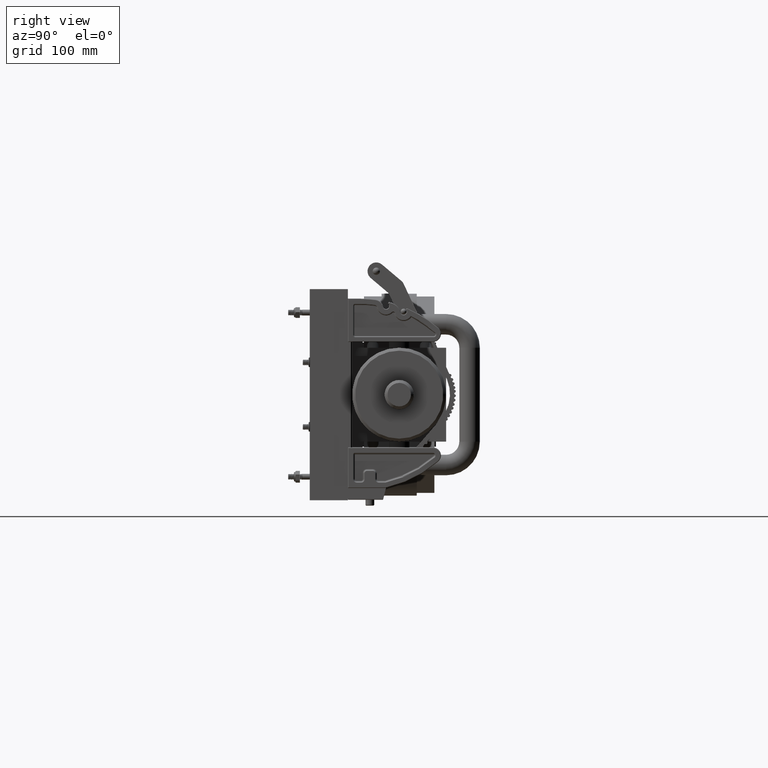
[diagram: clean part render]
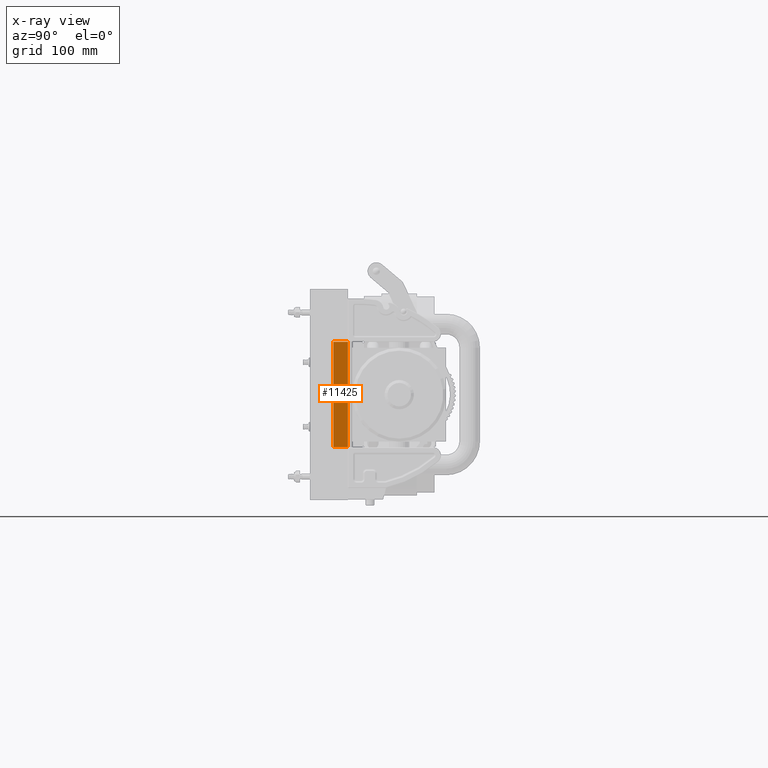
[diagram: x-ray — body ghosted, one internal face saturated and labeled with its STEP entity id]
A machine part, right view, then the same camera in x-ray: the body is ghosted and one INTERNAL B-rep face — a face not visible from any outside direction — is saturated and labeled: STEP entity #11425.
In plain terms, the highlighted planar face has unit normal (0.9344, -0.3561, 0).
Its self-contained STEP definition (entity closure, byte-faithful):
#473 = DIRECTION ( 'NONE',  ( -0.3561197693169032000, -0.9344403190689469800, 0.0000000000000000000 ) ) ;
#1326 = CARTESIAN_POINT ( 'NONE',  ( 4.370956789862821100E-015, -0.1880000000000016700, -2.250000000000000000 ) ) ;
#1435 = VERTEX_POINT ( 'NONE', #25701 ) ;
#2144 = CARTESIAN_POINT ( 'NONE',  ( 4.370956789862821100E-015, -0.1880000000000016700, 2.250000000000000000 ) ) ;
#6084 = DIRECTION ( 'NONE',  ( -0.0000000000000000000, -0.0000000000000000000, -1.000000000000000000 ) ) ;
#6741 = FACE_OUTER_BOUND ( 'NONE', #26015, .T. ) ;
#7552 = LINE ( 'NONE', #32899, #49577 ) ;
#9203 = AXIS2_PLACEMENT_3D ( 'NONE', #33451, #17239, #45725 ) ;
#11425 = ADVANCED_FACE ( 'NONE', ( #6741 ), #41637, .T. ) ;
#13823 = ORIENTED_EDGE ( 'NONE', *, *, #41980, .F. ) ;
#15770 = LINE ( 'NONE', #2144, #36180 ) ;
#15836 = DIRECTION ( 'NONE',  ( -0.3561197693169032000, -0.9344403190689469800, 0.0000000000000000000 ) ) ;
#17239 = DIRECTION ( 'NONE',  ( 0.9344403190689470900, -0.3561197693169032600, 0.0000000000000000000 ) ) ;
#18164 = LINE ( 'NONE', #52329, #37312 ) ;
#18370 = VECTOR ( 'NONE', #19831, 39.37007874015748100 ) ;
#19831 = DIRECTION ( 'NONE',  ( -0.0000000000000000000, -0.0000000000000000000, -1.000000000000000000 ) ) ;
#20422 = VERTEX_POINT ( 'NONE', #44954 ) ;
#22319 = EDGE_CURVE ( 'NONE', #20422, #37840, #18164, .T. ) ;
#23020 = VERTEX_POINT ( 'NONE', #1326 ) ;
#25701 = CARTESIAN_POINT ( 'NONE',  ( -0.2380000000000001300, -0.8125000000000000000, -2.250000000000000000 ) ) ;
#26015 = EDGE_LOOP ( 'NONE', ( #33588, #13823, #32418, #47170 ) ) ;
#27034 = EDGE_CURVE ( 'NONE', #37840, #1435, #29258, .T. ) ;
#27648 = CARTESIAN_POINT ( 'NONE',  ( -0.2380000000000001300, -0.8125000000000000000, 2.250000000000000000 ) ) ;
#29258 = LINE ( 'NONE', #31976, #18370 ) ;
#31976 = CARTESIAN_POINT ( 'NONE',  ( -0.2380000000000001300, -0.8125000000000000000, 2.250000000000000000 ) ) ;
#32418 = ORIENTED_EDGE ( 'NONE', *, *, #22319, .T. ) ;
#32899 = CARTESIAN_POINT ( 'NONE',  ( -0.2380000000000001300, -0.8125000000000000000, -2.250000000000000000 ) ) ;
#33451 = CARTESIAN_POINT ( 'NONE',  ( -0.2380000000000001300, -0.8125000000000000000, 2.250000000000000000 ) ) ;
#33588 = ORIENTED_EDGE ( 'NONE', *, *, #41315, .F. ) ;
#36180 = VECTOR ( 'NONE', #6084, 39.37007874015748100 ) ;
#37312 = VECTOR ( 'NONE', #15836, 39.37007874015748900 ) ;
#37840 = VERTEX_POINT ( 'NONE', #27648 ) ;
#41315 = EDGE_CURVE ( 'NONE', #23020, #1435, #7552, .T. ) ;
#41637 = PLANE ( 'NONE',  #9203 ) ;
#41980 = EDGE_CURVE ( 'NONE', #20422, #23020, #15770, .T. ) ;
#44954 = CARTESIAN_POINT ( 'NONE',  ( 4.370956789862821100E-015, -0.1880000000000016700, 2.250000000000000000 ) ) ;
#45725 = DIRECTION ( 'NONE',  ( 0.3561197693169032000, 0.9344403190689469800, 0.0000000000000000000 ) ) ;
#47170 = ORIENTED_EDGE ( 'NONE', *, *, #27034, .T. ) ;
#49577 = VECTOR ( 'NONE', #473, 39.37007874015748900 ) ;
#52329 = CARTESIAN_POINT ( 'NONE',  ( -0.2380000000000001300, -0.8125000000000000000, 2.250000000000000000 ) ) ;